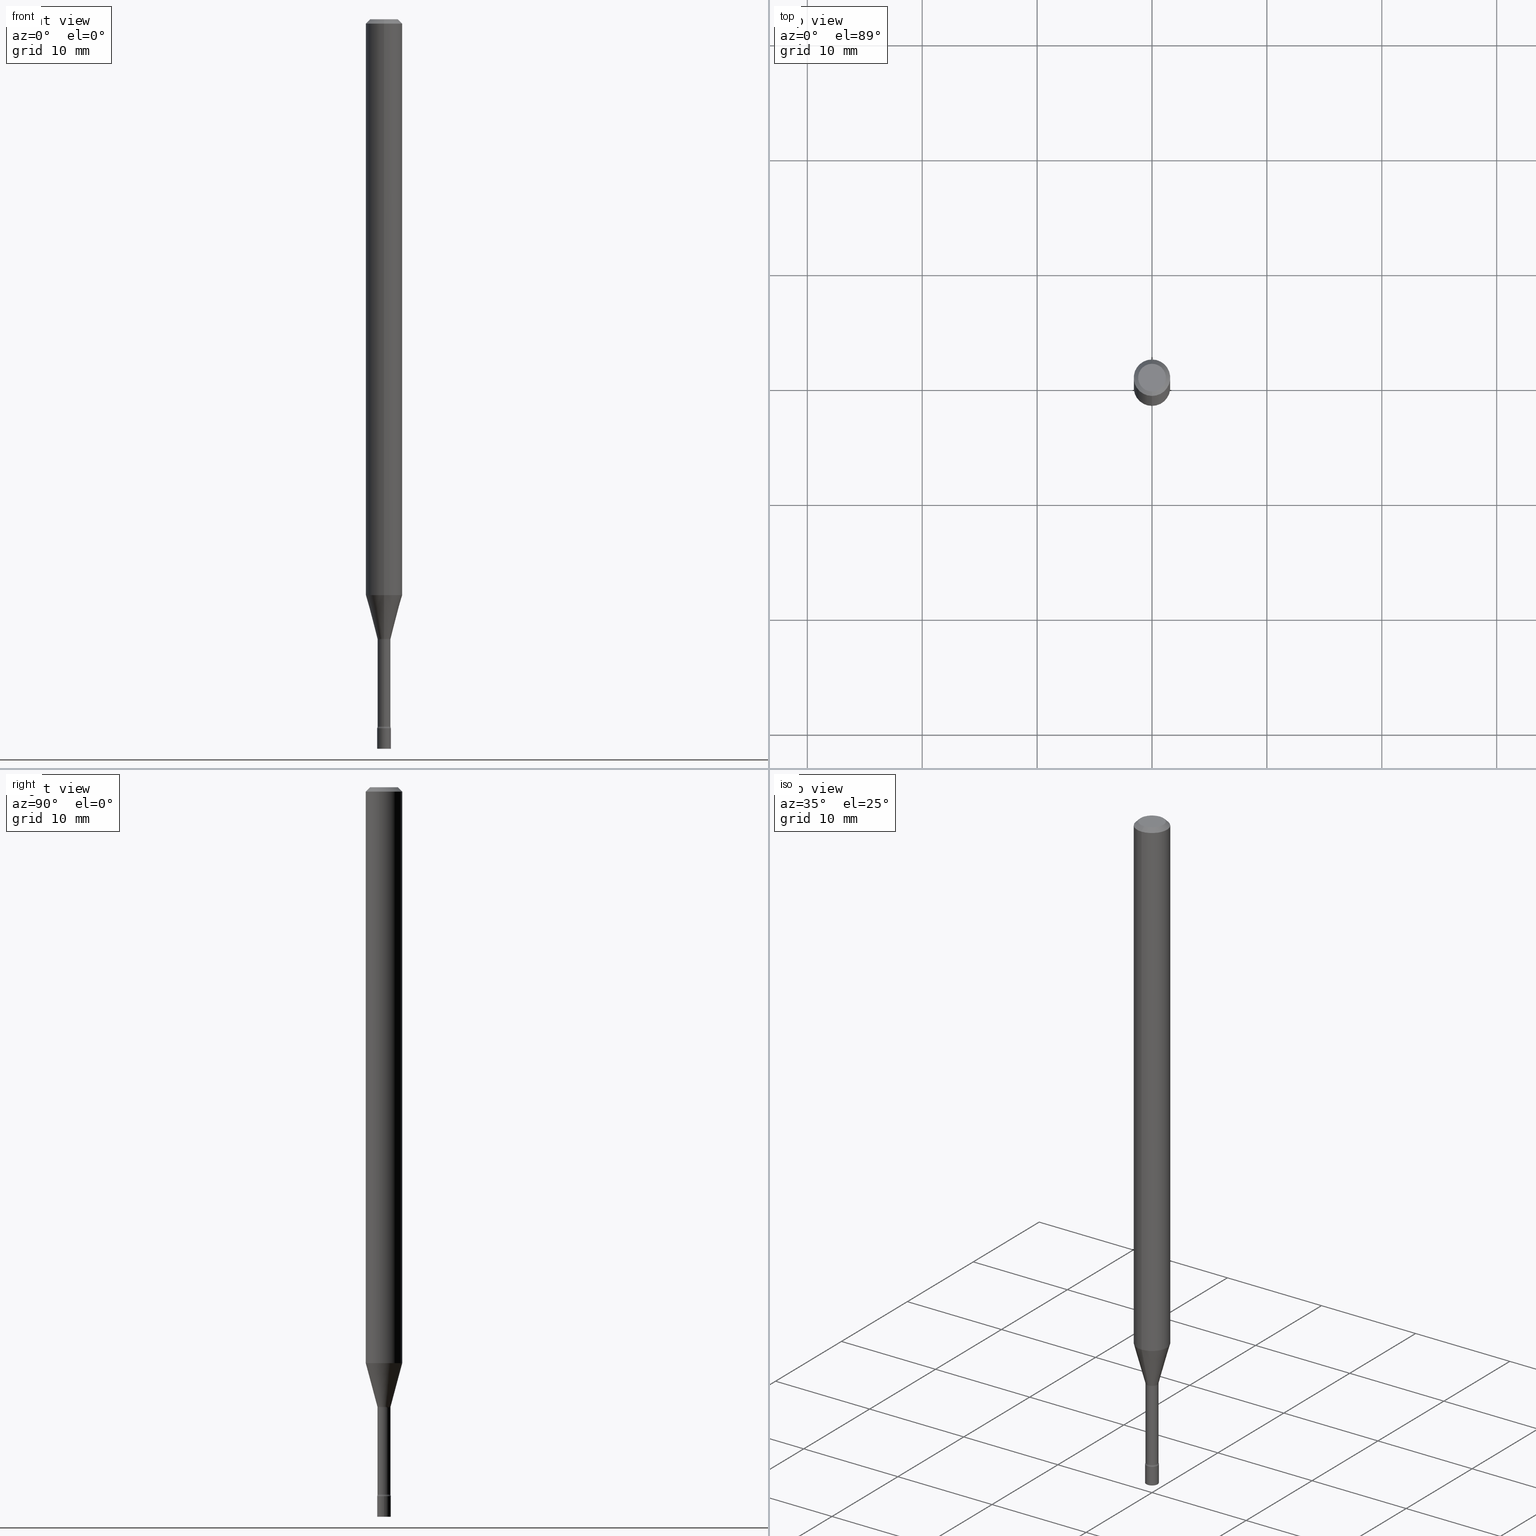
[diagram: canonical four-view strip — front | top / right | iso, engineering-drawing reading convention]
A machine part, canonical four-view strip (front | top / right | iso — engineering-drawing reading convention). The complete STEP part file that produces these views, byte-faithful:
ISO-10303-21;
HEADER;
FILE_DESCRIPTION (( 'STEP AP203' ),
    '1' );
FILE_NAME ('09664.STEP',
    '2024-03-09T00:33:19',
    ( '' ),
    ( '' ),
    'SwSTEP 2.0',
    'SolidWorks 2023',
    '' );
FILE_SCHEMA (( 'CONFIG_CONTROL_DESIGN' ));
ENDSEC;

DATA;
#1 =( LENGTH_UNIT ( ) NAMED_UNIT ( * ) SI_UNIT ( $, .METRE. ) );
#2 = DIRECTION ( 'NONE',  ( -2.445459864664737566E-29, 3.491494143609276784E-15, 1.000000000000000000 ) ) ;
#3 = DIRECTION ( 'NONE',  ( -2.445459864664737566E-29, 3.491494143609276784E-15, 1.000000000000000000 ) ) ;
#4 = AXIS2_PLACEMENT_3D ( 'NONE', #263, #390, #429 ) ;
#5 = CARTESIAN_POINT ( 'NONE',  ( 3.840629472727447874E-16, 0.04749999999999999362, -1.947592745229184119E-16 ) ) ;
#6 = CALENDAR_DATE ( 2024, 8, 3 ) ;
#7 = CARTESIAN_POINT ( 'NONE',  ( 1.570299446030415141E-16, 0.02209999999999257697, -2.125974787463811300 ) ) ;
#8 = ADVANCED_FACE ( 'NONE', ( #366 ), #496, .T. ) ;
#9 = VECTOR ( 'NONE', #475, 39.37007874015748143 ) ;
#10 = AXIS2_PLACEMENT_3D ( 'NONE', #313, #315, #341 ) ;
#11 = ORIENTED_EDGE ( 'NONE', *, *, #189, .F. ) ;
#12 = CARTESIAN_POINT ( 'NONE',  ( -3.773273898774340269E-16, -0.04749999999999999362, 1.369326691199628481E-16 ) ) ;
#13 = DIRECTION ( 'NONE',  ( -6.982962677686265922E-15, -1.000000000000000000, 0.000000000000000000 ) ) ;
#14 = ORIENTED_EDGE ( 'NONE', *, *, #310, .F. ) ;
#15 = AXIS2_PLACEMENT_3D ( 'NONE', #385, #380, #423 ) ;
#16 = ORIENTED_EDGE ( 'NONE', *, *, #481, .T. ) ;
#17 = VECTOR ( 'NONE', #352, 39.37007874015748143 ) ;
#18 = ADVANCED_FACE ( 'NONE', ( #173 ), #254, .T. ) ;
#19 = ORIENTED_EDGE ( 'NONE', *, *, #411, .F. ) ;
#20 = CARTESIAN_POINT ( 'NONE',  ( 5.924569496155794395E-29, -8.458715066898005273E-15, -2.422672283192177645 ) ) ;
#21 = CC_DESIGN_DATE_AND_TIME_ASSIGNMENT ( #500, #71, ( #461 ) ) ;
#22 = ORIENTED_EDGE ( 'NONE', *, *, #481, .F. ) ;
#23 = ORIENTED_EDGE ( 'NONE', *, *, #365, .F. ) ;
#24 = DIRECTION ( 'NONE',  ( -6.982962677686265133E-15, -1.000000000000000000, 0.000000000000000000 ) ) ;
#25 = CARTESIAN_POINT ( 'NONE',  ( 3.668189796997113601E-31, -5.237241215413926147E-17, -0.01500000000000003067 ) ) ;
#26 = ORIENTED_EDGE ( 'NONE', *, *, #206, .T. ) ;
#27 = DIRECTION ( 'NONE',  ( -6.982962677686265922E-15, -1.000000000000000000, 3.491494143609276390E-15 ) ) ;
#28 = CALENDAR_DATE ( 2024, 8, 3 ) ;
#29 = ADVANCED_FACE ( 'NONE', ( #32 ), #215, .F. ) ;
#30 = CARTESIAN_POINT ( 'NONE',  ( 2.636113549670491425E-16, 0.03709999999999258335, -2.125974787463811300 ) ) ;
#31 = DIRECTION ( 'NONE',  ( -6.982962677686265922E-15, -1.000000000000000000, 0.000000000000000000 ) ) ;
#32 = FACE_OUTER_BOUND ( 'NONE', #248, .T. ) ;
#33 = AXIS2_PLACEMENT_3D ( 'NONE', #269, #485, #31 ) ;
#34 = ADVANCED_FACE ( 'NONE', ( #456 ), #91, .F. ) ;
#35 = VERTEX_POINT ( 'NONE', #340 ) ;
#36 = LINE ( 'NONE', #431, #9 ) ;
#37 = DIRECTION ( 'NONE',  ( -2.445459864664737566E-29, 3.491494143609276784E-15, 1.000000000000000000 ) ) ;
#38 = VERTEX_POINT ( 'NONE', #107 ) ;
#39 = ADVANCED_FACE ( 'NONE', ( #308 ), #271, .T. ) ;
#40 = CARTESIAN_POINT ( 'NONE',  ( 6.113672015462842613E-29, -8.728703347107864943E-15, -2.500000000000000000 ) ) ;
#41 = APPROVAL_ROLE ( '' ) ;
#42 = CONICAL_SURFACE ( 'NONE', #121, 0.06250000000000000000, 0.7853981633974483900 ) ;
#43 = LOCAL_TIME ( 19, 33, 19.00000000000000000, #358 ) ;
#44 = DIRECTION ( 'NONE',  ( -6.982962677686265922E-15, -1.000000000000000000, 0.000000000000000000 ) ) ;
#45 = ADVANCED_FACE ( 'NONE', ( #213 ), #450, .F. ) ;
#46 = CARTESIAN_POINT ( 'NONE',  ( -4.364351673553434996E-16, -0.06250000000000691114, -1.973225147374217503 ) ) ;
#47 = FACE_OUTER_BOUND ( 'NONE', #325, .T. ) ;
#48 = ORIENTED_EDGE ( 'NONE', *, *, #365, .T. ) ;
#49 = ADVANCED_FACE ( 'NONE', ( #47 ), #124, .T. ) ;
#50 = CARTESIAN_POINT ( 'NONE',  ( 5.924569496155794395E-29, -8.458715066898005273E-15, -2.422672283192177645 ) ) ;
#51 = CLOSED_SHELL ( 'NONE', ( #266, #8, #45, #120, #353, #39, #514, #81, #204, #29, #34, #87, #296, #239 ) ) ;
#52 =( CONVERSION_BASED_UNIT ( 'INCH', #396 ) LENGTH_UNIT ( ) NAMED_UNIT ( #283 ) );
#53 = VECTOR ( 'NONE', #472, 39.37007874015748143 ) ;
#54 = AXIS2_PLACEMENT_3D ( 'NONE', #311, #233, #201 ) ;
#55 = AXIS2_PLACEMENT_3D ( 'NONE', #493, #363, #158 ) ;
#56 = APPROVAL ( #88, 'UNSPECIFIED' ) ;
#57 = CARTESIAN_POINT ( 'NONE',  ( -1.543234751768144959E-16, -0.02210000000000742273, -2.125974787463811300 ) ) ;
#58 = ORIENTED_EDGE ( 'NONE', *, *, #507, .F. ) ;
#59 = VERTEX_POINT ( 'NONE', #46 ) ;
#60 = EDGE_CURVE ( 'NONE', #148, #265, #292, .T. ) ;
#61 = DIRECTION ( 'NONE',  ( -2.445459864664737566E-29, 3.491494143609276784E-15, 1.000000000000000000 ) ) ;
#62 = AXIS2_PLACEMENT_3D ( 'NONE', #422, #69, #222 ) ;
#63 = ORIENTED_EDGE ( 'NONE', *, *, #232, .T. ) ;
#64 = CARTESIAN_POINT ( 'NONE',  ( 5.924547833782153992E-29, -8.458746088650004538E-15, -2.422672283192177645 ) ) ;
#65 = DIRECTION ( 'NONE',  ( -6.982962677686265922E-15, -1.000000000000000000, 0.000000000000000000 ) ) ;
#66 = ORIENTED_EDGE ( 'NONE', *, *, #282, .T. ) ;
#67 = ORIENTED_EDGE ( 'NONE', *, *, #328, .F. ) ;
#68 = DIRECTION ( 'NONE',  ( -2.445459864664737566E-29, 3.491494143609276390E-15, 1.000000000000000000 ) ) ;
#69 = DIRECTION ( 'NONE',  ( -1.000000000000000000, 6.982962677686265922E-15, -4.883557194083112340E-29 ) ) ;
#70 = ORIENTED_EDGE ( 'NONE', *, *, #483, .T. ) ;
#71 = DATE_TIME_ROLE ( 'classification_date' ) ;
#72 = VERTEX_POINT ( 'NONE', #5 ) ;
#73 = CARTESIAN_POINT ( 'NONE',  ( 0.000000000000000000, 0.000000000000000000, 0.000000000000000000 ) ) ;
#74 = CARTESIAN_POINT ( 'NONE',  ( -0.02350000000000000352, -8.437778216675308581E-15, -2.429000000000000270 ) ) ;
#75 = ORIENTED_EDGE ( 'NONE', *, *, #483, .F. ) ;
#76 = LINE ( 'NONE', #149, #53 ) ;
#77 = DIRECTION ( 'NONE',  ( -6.982962677686266711E-15, -1.000000000000000000, 0.000000000000000000 ) ) ;
#78 = CIRCLE ( 'NONE', #443, 0.06250000000000000000 ) ;
#79 = MANIFOLD_SOLID_BREP ( 'Body-Move/Copy2[1]', #132 ) ;
#80 = APPROVAL_DATE_TIME ( #400, #406 ) ;
#81 = ADVANCED_FACE ( 'NONE', ( #320 ), #130, .T. ) ;
#82 = APPROVAL ( #351, 'UNSPECIFIED' ) ;
#83 = DIRECTION ( 'NONE',  ( -2.445459864664737566E-29, 3.491494143609276784E-15, 1.000000000000000000 ) ) ;
#84 = CIRCLE ( 'NONE', #133, 0.04749999999999999362 ) ;
#85 = CARTESIAN_POINT ( 'NONE',  ( 0.000000000000000000, 0.000000000000000000, 0.000000000000000000 ) ) ;
#86 = LOCAL_TIME ( 19, 33, 19.00000000000000000, #165 ) ;
#87 = ADVANCED_FACE ( 'NONE', ( #116 ), #234, .F. ) ;
#88 = APPROVAL_STATUS ( 'not_yet_approved' ) ;
#89 = CARTESIAN_POINT ( 'NONE',  ( 4.440892098501111311E-16, 0.06249999999999995143, -0.01500000000000024751 ) ) ;
#90 = ORIENTED_EDGE ( 'NONE', *, *, #357, .F. ) ;
#91 = PLANE ( 'NONE',  #473 ) ;
#92 = DIRECTION ( 'NONE',  ( -2.445459864664737566E-29, 3.491494143609276390E-15, 1.000000000000000000 ) ) ;
#93 = LINE ( 'NONE', #256, #312 ) ;
#94 = EDGE_LOOP ( 'NONE', ( #58, #346, #458, #309 ) ) ;
#95 = ORIENTED_EDGE ( 'NONE', *, *, #197, .T. ) ;
#96 = EDGE_CURVE ( 'NONE', #347, #35, #426, .T. ) ;
#97 = AXIS2_PLACEMENT_3D ( 'NONE', #73, #386, #304 ) ;
#98 = DIRECTION ( 'NONE',  ( -6.982962677686266711E-15, -1.000000000000000000, 3.491494143609277179E-15 ) ) ;
#99 = LINE ( 'NONE', #421, #203 ) ;
#100 = DIRECTION ( 'NONE',  ( 1.839019923739599526E-15, 0.2588190451025248473, 0.9659258262890673130 ) ) ;
#101 = ORIENTED_EDGE ( 'NONE', *, *, #129, .T. ) ;
#102 = DIRECTION ( 'NONE',  ( -6.982962677686265922E-15, -1.000000000000000000, 3.491494143609276784E-15 ) ) ;
#103 = DIRECTION ( 'NONE',  ( -2.445459864664737566E-29, 3.491494143609276784E-15, 1.000000000000000000 ) ) ;
#104 = PERSON_AND_ORGANIZATION ( #520, #164 ) ;
#105 = CARTESIAN_POINT ( 'NONE',  ( -4.364351673553912750E-16, -0.06250000000000005551, -0.01499999999999981209 ) ) ;
#106 = EDGE_LOOP ( 'NONE', ( #14, #48, #468, #22 ) ) ;
#107 = CARTESIAN_POINT ( 'NONE',  ( 0.02350000000000000352, -8.892802970033491011E-15, -2.500000000000000000 ) ) ;
#108 = ORIENTED_EDGE ( 'NONE', *, *, #150, .T. ) ;
#109 = DIRECTION ( 'NONE',  ( -6.982962677686265922E-15, -1.000000000000000000, 3.491494143609276784E-15 ) ) ;
#110 = AXIS2_PLACEMENT_3D ( 'NONE', #85, #245, #405 ) ;
#111 = CARTESIAN_POINT ( 'NONE',  ( 3.668189796997113601E-31, -5.237241215413926147E-17, -0.01500000000000003067 ) ) ;
#112 = CARTESIAN_POINT ( 'NONE',  ( -2.590679153421085311E-16, -0.03710000000000742565, -2.125974787463811300 ) ) ;
#113 = ORIENTED_EDGE ( 'NONE', *, *, #96, .F. ) ;
#114 = CC_DESIGN_PERSON_AND_ORGANIZATION_ASSIGNMENT ( #167, #445, ( #276 ) ) ;
#115 = DIRECTION ( 'NONE',  ( 1.000000000000000000, -7.105427357601001070E-15, 4.926315665355240651E-29 ) ) ;
#116 = FACE_OUTER_BOUND ( 'NONE', #495, .T. ) ;
#117 = DATE_AND_TIME ( #518, #145 ) ;
#118 = APPROVAL_ROLE ( '' ) ;
#119 = APPROVAL_DATE_TIME ( #117, #82 ) ;
#120 = ADVANCED_FACE ( 'NONE', ( #376 ), #369, .T. ) ;
#121 = AXIS2_PLACEMENT_3D ( 'NONE', #111, #154, #377 ) ;
#122 = CIRCLE ( 'NONE', #259, 0.02210000000000000159 ) ;
#123 = COORDINATED_UNIVERSAL_TIME_OFFSET ( 5, 0, .BEHIND. ) ;
#124 = CYLINDRICAL_SURFACE ( 'NONE', #54, 0.02350000000000000352 ) ;
#125 = DIRECTION ( 'NONE',  ( -6.982962677686265922E-15, -1.000000000000000000, 0.000000000000000000 ) ) ;
#126 = CARTESIAN_POINT ( 'NONE',  ( 6.113672015462842613E-29, -8.728703347107864943E-15, -2.500000000000000000 ) ) ;
#127 = PERSON_AND_ORGANIZATION ( #520, #164 ) ;
#128 = DIRECTION ( 'NONE',  ( -2.445468806185136877E-29, 3.491481338843145188E-15, 1.000000000000000000 ) ) ;
#129 = EDGE_CURVE ( 'NONE', #72, #284, #99, .T. ) ;
#130 = CYLINDRICAL_SURFACE ( 'NONE', #110, 0.06250000000000000000 ) ;
#131 = ORIENTED_EDGE ( 'NONE', *, *, #428, .F. ) ;
#132 = CLOSED_SHELL ( 'NONE', ( #49, #136, #18, #321 ) ) ;
#133 = AXIS2_PLACEMENT_3D ( 'NONE', #155, #2, #98 ) ;
#134 = DATE_TIME_ROLE ( 'creation_date' ) ;
#135 = CARTESIAN_POINT ( 'NONE',  ( 5.940043730223697314E-29, -8.480808172050001970E-15, -2.429000000000000270 ) ) ;
#136 = ADVANCED_FACE ( 'NONE', ( #146 ), #270, .T. ) ;
#137 = AXIS2_PLACEMENT_3D ( 'NONE', #230, #350, #435 ) ;
#138 = ORIENTED_EDGE ( 'NONE', *, *, #428, .T. ) ;
#139 = DIRECTION ( 'NONE',  ( 2.445459864664737566E-29, -3.491494143609276390E-15, -1.000000000000000000 ) ) ;
#140 = EDGE_LOOP ( 'NONE', ( #188, #379 ) ) ;
#141 = FACE_OUTER_BOUND ( 'NONE', #378, .T. ) ;
#142 = ORIENTED_EDGE ( 'NONE', *, *, #169, .F. ) ;
#143 = DIRECTION ( 'NONE',  ( 1.000000000000000000, -7.105427357601001070E-15, 4.926315665355240651E-29 ) ) ;
#144 = AXIS2_PLACEMENT_3D ( 'NONE', #302, #103, #24 ) ;
#145 = LOCAL_TIME ( 19, 33, 19.00000000000000000, #288 ) ;
#146 = FACE_OUTER_BOUND ( 'NONE', #140, .T. ) ;
#147 = CARTESIAN_POINT ( 'NONE',  ( 5.199005025478825599E-29, -7.422801297280918340E-15, -2.125974787463811300 ) ) ;
#148 = VERTEX_POINT ( 'NONE', #74 ) ;
#149 = CARTESIAN_POINT ( 'NONE',  ( -4.364351673553916201E-16, -0.06250000000000000000, 2.182183839755797990E-16 ) ) ;
#150 = EDGE_CURVE ( 'NONE', #35, #220, #392, .T. ) ;
#151 = CIRCLE ( 'NONE', #342, 0.02350000000000000352 ) ;
#152 =( GEOMETRIC_REPRESENTATION_CONTEXT ( 3 ) GLOBAL_UNCERTAINTY_ASSIGNED_CONTEXT ( ( #391 ) ) GLOBAL_UNIT_ASSIGNED_CONTEXT ( ( #52, #319, #160 ) ) REPRESENTATION_CONTEXT ( 'NONE', 'WORKASPACE' ) );
#153 = PERSON_AND_ORGANIZATION ( #520, #164 ) ;
#154 = DIRECTION ( 'NONE',  ( 2.445459864664737566E-29, -3.491494143609276784E-15, -1.000000000000000000 ) ) ;
#155 = CARTESIAN_POINT ( 'NONE',  ( 7.070632131136643894E-46, -1.009506270546119456E-31, -2.891330270147777573E-17 ) ) ;
#156 = VECTOR ( 'NONE', #128, 39.37007874015748143 ) ;
#157 = DIRECTION ( 'NONE',  ( 0.000000000000000000, 0.000000000000000000, 1.000000000000000000 ) ) ;
#158 = DIRECTION ( 'NONE',  ( -6.982962677686265922E-15, -1.000000000000000000, 3.491494143609276784E-15 ) ) ;
#159 = LINE ( 'NONE', #322, #183 ) ;
#160 =( NAMED_UNIT ( * ) SI_UNIT ( $, .STERADIAN. ) SOLID_ANGLE_UNIT ( ) );
#161 = DIRECTION ( 'NONE',  ( -2.445459864664737566E-29, 3.491494143609276784E-15, 1.000000000000000000 ) ) ;
#162 = AXIS2_PLACEMENT_3D ( 'NONE', #30, #115, #228 ) ;
#163 = AXIS2_PLACEMENT_3D ( 'NONE', #368, #139, #337 ) ;
#164 = ORGANIZATION ( 'UNSPECIFIED', 'UNSPECIFIED', '' ) ;
#165 = COORDINATED_UNIVERSAL_TIME_OFFSET ( 5, 0, .BEHIND. ) ;
#166 = EDGE_CURVE ( 'NONE', #294, #38, #151, .T. ) ;
#167 = PERSON_AND_ORGANIZATION ( #520, #164 ) ;
#168 = CARTESIAN_POINT ( 'NONE',  ( -1.578925554262611837E-16, -0.02261111260567139764, -2.122092501787273378 ) ) ;
#169 = EDGE_CURVE ( 'NONE', #35, #260, #464, .T. ) ;
#170 = EDGE_LOOP ( 'NONE', ( #492, #90 ) ) ;
#171 = CIRCLE ( 'NONE', #62, 0.01499999999999999424 ) ;
#172 = CIRCLE ( 'NONE', #399, 0.01500000000000002373 ) ;
#173 = FACE_OUTER_BOUND ( 'NONE', #502, .T. ) ;
#174 = CARTESIAN_POINT ( 'NONE',  ( -1.578925554262611837E-16, -0.02261111260567139764, -2.122092501787273378 ) ) ;
#175 = ORIENTED_EDGE ( 'NONE', *, *, #166, .F. ) ;
#176 = ORIENTED_EDGE ( 'NONE', *, *, #469, .F. ) ;
#177 = CARTESIAN_POINT ( 'NONE',  ( 1.669775429036828812E-16, 0.02349999999999151726, -2.429000000000000270 ) ) ;
#178 = DIRECTION ( 'NONE',  ( -2.445459864664737566E-29, 3.491494143609276784E-15, 1.000000000000000000 ) ) ;
#179 = PERSON_AND_ORGANIZATION_ROLE ( 'design_supplier' ) ;
#180 = DIRECTION ( 'NONE',  ( 2.445459864664737566E-29, -3.491494143609276784E-15, -1.000000000000000000 ) ) ;
#181 = EDGE_LOOP ( 'NONE', ( #264, #252, #184, #75 ) ) ;
#182 = ORIENTED_EDGE ( 'NONE', *, *, #206, .F. ) ;
#183 = VECTOR ( 'NONE', #92, 39.37007874015748143 ) ;
#184 = ORIENTED_EDGE ( 'NONE', *, *, #434, .T. ) ;
#185 = CARTESIAN_POINT ( 'NONE',  ( 0.000000000000000000, 0.000000000000000000, 0.000000000000000000 ) ) ;
#186 = CYLINDRICAL_SURFACE ( 'NONE', #97, 0.02210000000000003628 ) ;
#187 = SECURITY_CLASSIFICATION_LEVEL ( 'unclassified' ) ;
#188 = ORIENTED_EDGE ( 'NONE', *, *, #328, .T. ) ;
#189 = EDGE_CURVE ( 'NONE', #294, #148, #36, .T. ) ;
#190 = CARTESIAN_POINT ( 'NONE',  ( 4.440892098501106381E-16, 0.06249999999999308192, -1.973225147374218169 ) ) ;
#191 = DIRECTION ( 'NONE',  ( 1.000000000000000000, -6.982962677686228056E-15, 0.000000000000000000 ) ) ;
#192 = DIRECTION ( 'NONE',  ( -2.445459864664737566E-29, 3.491494143609276390E-15, 1.000000000000000000 ) ) ;
#193 = CARTESIAN_POINT ( 'NONE',  ( 5.189492042226759064E-29, -7.409273542187424464E-15, -2.122092501787273378 ) ) ;
#194 = TOROIDAL_SURFACE ( 'NONE', #360, 0.03710000000000000103, 0.01500000000000002373 ) ;
#195 = CALENDAR_DATE ( 2024, 8, 3 ) ;
#196 = APPROVAL_PERSON_ORGANIZATION ( #211, #56, #293 ) ;
#197 = EDGE_CURVE ( 'NONE', #35, #347, #278, .T. ) ;
#198 = LINE ( 'NONE', #516, #17 ) ;
#199 = CARTESIAN_POINT ( 'NONE',  ( 3.668189796997113601E-31, -5.237241215413926147E-17, -0.01500000000000003067 ) ) ;
#200 = DIRECTION ( 'NONE',  ( -2.445459864664737566E-29, 3.491494143609276784E-15, 1.000000000000000000 ) ) ;
#201 = DIRECTION ( 'NONE',  ( 1.000000000000000000, -6.982962677686265922E-15, 4.876176775795935793E-29 ) ) ;
#202 = LINE ( 'NONE', #433, #156 ) ;
#203 = VECTOR ( 'NONE', #231, 39.37007874015748143 ) ;
#204 = ADVANCED_FACE ( 'NONE', ( #221 ), #42, .T. ) ;
#205 = DIRECTION ( 'NONE',  ( -2.445459864664737566E-29, 3.491494143609276784E-15, 1.000000000000000000 ) ) ;
#206 = EDGE_CURVE ( 'NONE', #489, #261, #323, .T. ) ;
#207 = AXIS2_PLACEMENT_3D ( 'NONE', #454, #420, #381 ) ;
#208 = EDGE_CURVE ( 'NONE', #375, #401, #171, .T. ) ;
#209 = DIRECTION ( 'NONE',  ( -6.982962677686265922E-15, -1.000000000000000000, 4.370956789862821150E-15 ) ) ;
#210 = PERSON_AND_ORGANIZATION ( #520, #164 ) ;
#211 = PERSON_AND_ORGANIZATION ( #520, #164 ) ;
#212 = DIRECTION ( 'NONE',  ( -6.982962677686265133E-15, -1.000000000000000000, 0.000000000000000000 ) ) ;
#213 = FACE_OUTER_BOUND ( 'NONE', #508, .T. ) ;
#214 = VERTEX_POINT ( 'NONE', #105 ) ;
#215 = PLANE ( 'NONE',  #163 ) ;
#216 = EDGE_CURVE ( 'NONE', #38, #294, #408, .T. ) ;
#217 = CIRCLE ( 'NONE', #415, 0.06250000000000000000 ) ;
#218 = ORIENTED_EDGE ( 'NONE', *, *, #150, .F. ) ;
#219 = AXIS2_PLACEMENT_3D ( 'NONE', #480, #205, #125 ) ;
#220 = VERTEX_POINT ( 'NONE', #7 ) ;
#221 = FACE_OUTER_BOUND ( 'NONE', #519, .T. ) ;
#222 = DIRECTION ( 'NONE',  ( -6.982962677686265133E-15, -1.000000000000000000, 0.000000000000000000 ) ) ;
#223 = ORIENTED_EDGE ( 'NONE', *, *, #318, .T. ) ;
#224 = AXIS2_PLACEMENT_3D ( 'NONE', #20, #498, #295 ) ;
#225 = APPROVAL_PERSON_ORGANIZATION ( #397, #406, #41 ) ;
#226 = PERSON_AND_ORGANIZATION_ROLE ( 'creator' ) ;
#227 = PERSON_AND_ORGANIZATION ( #520, #164 ) ;
#228 = DIRECTION ( 'NONE',  ( 7.105427357601001859E-15, 1.000000000000000000, 0.000000000000000000 ) ) ;
#229 = LINE ( 'NONE', #389, #474 ) ;
#230 = CARTESIAN_POINT ( 'NONE',  ( 5.940043730223697314E-29, -8.480808172050001970E-15, -2.429000000000000270 ) ) ;
#231 = DIRECTION ( 'NONE',  ( 4.937700262164548042E-15, 0.7071067811865451302, -0.7071067811865499042 ) ) ;
#232 = EDGE_CURVE ( 'NONE', #59, #260, #217, .T. ) ;
#233 = DIRECTION ( 'NONE',  ( -2.445468806185136597E-29, 3.491481338843145583E-15, 1.000000000000000000 ) ) ;
#234 = TOROIDAL_SURFACE ( 'NONE', #224, 0.03710000000000006348, 0.01499999999999999424 ) ;
#235 = CIRCLE ( 'NONE', #10, 0.06250000000000000000 ) ;
#236 = LOCAL_TIME ( 19, 33, 19.00000000000000000, #425 ) ;
#237 = EDGE_CURVE ( 'NONE', #489, #220, #159, .T. ) ;
#238 = APPLICATION_PROTOCOL_DEFINITION ( 'international standard', 'config_control_design', 1994, #488 ) ;
#239 = ADVANCED_FACE ( 'NONE', ( #503 ), #194, .F. ) ;
#240 = ORIENTED_EDGE ( 'NONE', *, *, #382, .T. ) ;
#241 = AXIS2_PLACEMENT_3D ( 'NONE', #50, #3, #479 ) ;
#242 = MANIFOLD_SOLID_BREP ( 'Body-Move/Copy2[2]', #51 ) ;
#243 = DESIGN_CONTEXT ( 'detailed design', #488, 'design' ) ;
#244 = DIRECTION ( 'NONE',  ( -6.982962677686265922E-15, -1.000000000000000000, 3.491494143609276784E-15 ) ) ;
#245 = DIRECTION ( 'NONE',  ( -2.445459864664737566E-29, 3.491494143609276784E-15, 1.000000000000000000 ) ) ;
#246 = MECHANICAL_CONTEXT ( 'NONE', #463, 'mechanical' ) ;
#247 = EDGE_CURVE ( 'NONE', #375, #489, #484, .T. ) ;
#248 = EDGE_LOOP ( 'NONE', ( #306, #274 ) ) ;
#249 = CIRCLE ( 'NONE', #33, 0.02350000000000000352 ) ;
#250 = CC_DESIGN_SECURITY_CLASSIFICATION ( #461, ( #362 ) ) ;
#251 = CARTESIAN_POINT ( 'NONE',  ( 4.825442901850811543E-29, -6.889504046079633942E-15, -1.973225147374217947 ) ) ;
#252 = ORIENTED_EDGE ( 'NONE', *, *, #469, .T. ) ;
#253 = PRODUCT_DEFINITION_SHAPE ( 'NONE', 'NONE',  #276 ) ;
#254 = CYLINDRICAL_SURFACE ( 'NONE', #15, 0.02350000000000000352 ) ;
#255 = DIRECTION ( 'NONE',  ( -2.445459864664737566E-29, 3.491494143609276784E-15, 1.000000000000000000 ) ) ;
#256 = CARTESIAN_POINT ( 'NONE',  ( -4.287811248607203282E-16, -0.06250000000000005551, -0.01499999999999981209 ) ) ;
#257 = AXIS2_PLACEMENT_3D ( 'NONE', #193, #510, #467 ) ;
#258 = ORIENTED_EDGE ( 'NONE', *, *, #247, .T. ) ;
#259 = AXIS2_PLACEMENT_3D ( 'NONE', #394, #178, #44 ) ;
#260 = VERTEX_POINT ( 'NONE', #190 ) ;
#261 = VERTEX_POINT ( 'NONE', #177 ) ;
#262 = CARTESIAN_POINT ( 'NONE',  ( 1.620037437533623579E-16, 0.02209999999999160900, -2.422672283192177645 ) ) ;
#263 = CARTESIAN_POINT ( 'NONE',  ( 5.940043730223697314E-29, -8.480808172050001970E-15, -2.429000000000000270 ) ) ;
#264 = ORIENTED_EDGE ( 'NONE', *, *, #237, .F. ) ;
#265 = VERTEX_POINT ( 'NONE', #499 ) ;
#266 = ADVANCED_FACE ( 'NONE', ( #459 ), #436, .F. ) ;
#267 = ORIENTED_EDGE ( 'NONE', *, *, #208, .F. ) ;
#268 = CARTESIAN_POINT ( 'NONE',  ( 5.189492042226759064E-29, -7.409273542187424464E-15, -2.122092501787273378 ) ) ;
#269 = CARTESIAN_POINT ( 'NONE',  ( 5.940022011270647175E-29, -8.480839274826933485E-15, -2.429000000000000270 ) ) ;
#270 = PLANE ( 'NONE',  #4 ) ;
#271 = CONICAL_SURFACE ( 'NONE', #329, 0.02261111260566398690, 0.2617993877991501295 ) ;
#272 = CIRCLE ( 'NONE', #279, 0.02350000000000000352 ) ;
#273 = EDGE_LOOP ( 'NONE', ( #291, #108, #70, #131 ) ) ;
#274 = ORIENTED_EDGE ( 'NONE', *, *, #507, .T. ) ;
#275 = CARTESIAN_POINT ( 'NONE',  ( 1.606616180941336340E-16, 0.02261111260565657616, -2.122092501787273378 ) ) ;
#276 = PRODUCT_DEFINITION ( 'UNKNOWN', '', #362, #243 ) ;
#277 = AXIS2_PLACEMENT_3D ( 'NONE', #185, #61, #102 ) ;
#278 = CIRCLE ( 'NONE', #257, 0.02261111260566398690 ) ;
#279 = AXIS2_PLACEMENT_3D ( 'NONE', #135, #287, #410 ) ;
#280 = CARTESIAN_POINT ( 'NONE',  ( 0.000000000000000000, 0.000000000000000000, 0.000000000000000000 ) ) ;
#281 = ORIENTED_EDGE ( 'NONE', *, *, #166, .T. ) ;
#282 = EDGE_CURVE ( 'NONE', #401, #261, #249, .T. ) ;
#283 = DIMENSIONAL_EXPONENTS ( 1.000000000000000000, 0.000000000000000000, 0.000000000000000000, 0.000000000000000000, 0.000000000000000000, 0.000000000000000000, 0.000000000000000000 ) ;
#284 = VERTEX_POINT ( 'NONE', #89 ) ;
#285 = DIRECTION ( 'NONE',  ( -6.982962677686265922E-15, -1.000000000000000000, 4.370956789862821150E-15 ) ) ;
#286 = CARTESIAN_POINT ( 'NONE',  ( 5.199005025478825599E-29, -7.422801297280918340E-15, -2.125974787463811300 ) ) ;
#287 = DIRECTION ( 'NONE',  ( -2.445468806185136597E-29, 3.491481338843145583E-15, 1.000000000000000000 ) ) ;
#288 = COORDINATED_UNIVERSAL_TIME_OFFSET ( 5, 0, .BEHIND. ) ;
#289 = CC_DESIGN_PERSON_AND_ORGANIZATION_ASSIGNMENT ( #153, #179, ( #362 ) ) ;
#290 = CARTESIAN_POINT ( 'NONE',  ( 5.940022011270647175E-29, -8.480839274826933485E-15, -2.429000000000000270 ) ) ;
#291 = ORIENTED_EDGE ( 'NONE', *, *, #197, .F. ) ;
#292 = CIRCLE ( 'NONE', #137, 0.02350000000000000352 ) ;
#293 = APPROVAL_ROLE ( '' ) ;
#294 = VERTEX_POINT ( 'NONE', #373 ) ;
#295 = DIRECTION ( 'NONE',  ( -6.982962677686265922E-15, -1.000000000000000000, 3.491494143609276784E-15 ) ) ;
#296 = ADVANCED_FACE ( 'NONE', ( #430 ), #186, .T. ) ;
#297 = DATE_AND_TIME ( #6, #43 ) ;
#298 = PLANE ( 'NONE',  #207 ) ;
#299 = AXIS2_PLACEMENT_3D ( 'NONE', #339, #143, #383 ) ;
#300 = DIRECTION ( 'NONE',  ( 6.982962677686265922E-15, 1.000000000000000000, -3.483106191921935554E-15 ) ) ;
#301 = ORIENTED_EDGE ( 'NONE', *, *, #216, .T. ) ;
#303 = EDGE_CURVE ( 'NONE', #59, #214, #76, .T. ) ;
#302 = CARTESIAN_POINT ( 'NONE',  ( 5.924547833782153992E-29, -8.458746088650004538E-15, -2.422672283192177645 ) ) ;
#304 = DIRECTION ( 'NONE',  ( -6.982962677686265922E-15, -1.000000000000000000, 3.491494143609276784E-15 ) ) ;
#305 = DIRECTION ( 'NONE',  ( -2.445468806185136597E-29, 3.491481338843145583E-15, 1.000000000000000000 ) ) ;
#306 = ORIENTED_EDGE ( 'NONE', *, *, #411, .T. ) ;
#307 = ORIENTED_EDGE ( 'NONE', *, *, #189, .T. ) ;
#308 = FACE_OUTER_BOUND ( 'NONE', #418, .T. ) ;
#309 = ORIENTED_EDGE ( 'NONE', *, *, #129, .F. ) ;
#310 = EDGE_CURVE ( 'NONE', #260, #284, #229, .T. ) ;
#311 = CARTESIAN_POINT ( 'NONE',  ( 0.000000000000000000, 0.000000000000000000, 0.000000000000000000 ) ) ;
#312 = VECTOR ( 'NONE', #448, 39.37007874015748143 ) ;
#313 = CARTESIAN_POINT ( 'NONE',  ( 3.668189796997113601E-31, -5.237241215413926147E-17, -0.01500000000000003067 ) ) ;
#314 = CARTESIAN_POINT ( 'NONE',  ( -1.640996229255678655E-16, -0.02350000000000847938, -2.429000000000000270 ) ) ;
#315 = DIRECTION ( 'NONE',  ( -2.445459864664737566E-29, 3.491494143609276784E-15, 1.000000000000000000 ) ) ;
#316 = AXIS2_PLACEMENT_3D ( 'NONE', #25, #180, #300 ) ;
#317 = AXIS2_PLACEMENT_3D ( 'NONE', #290, #404, #446 ) ;
#318 = EDGE_CURVE ( 'NONE', #347, #59, #512, .T. ) ;
#319 =( NAMED_UNIT ( * ) PLANE_ANGLE_UNIT ( ) SI_UNIT ( $, .RADIAN. ) );
#320 = FACE_OUTER_BOUND ( 'NONE', #106, .T. ) ;
#321 = ADVANCED_FACE ( 'NONE', ( #141 ), #298, .T. ) ;
#322 = CARTESIAN_POINT ( 'NONE',  ( 1.570299446029823742E-16, 0.02210000000000003628, -7.716202057376514729E-17 ) ) ;
#323 = CIRCLE ( 'NONE', #299, 0.01499999999999999424 ) ;
#324 = AXIS2_PLACEMENT_3D ( 'NONE', #64, #412, #212 ) ;
#325 = EDGE_LOOP ( 'NONE', ( #301, #307, #67, #470 ) ) ;
#326 = APPROVAL_DATE_TIME ( #297, #56 ) ;
#327 = FACE_OUTER_BOUND ( 'NONE', #511, .T. ) ;
#328 = EDGE_CURVE ( 'NONE', #265, #148, #272, .T. ) ;
#329 = AXIS2_PLACEMENT_3D ( 'NONE', #268, #471, #424 ) ;
#330 = CYLINDRICAL_SURFACE ( 'NONE', #55, 0.06250000000000000000 ) ;
#331 = CONICAL_SURFACE ( 'NONE', #219, 0.02261111260566398690, 0.2617993877991501295 ) ;
#332 = DATE_AND_TIME ( #453, #86 ) ;
#333 = EDGE_LOOP ( 'NONE', ( #142, #95, #223, #23 ) ) ;
#334 = ORIENTED_EDGE ( 'NONE', *, *, #310, .T. ) ;
#335 = ORIENTED_EDGE ( 'NONE', *, *, #96, .T. ) ;
#336 = ORIENTED_EDGE ( 'NONE', *, *, #216, .F. ) ;
#337 = DIRECTION ( 'NONE',  ( 6.982962677686265922E-15, 1.000000000000000000, -3.491494143609276390E-15 ) ) ;
#338 = PERSON_AND_ORGANIZATION_ROLE ( 'classification_officer' ) ;
#339 = CARTESIAN_POINT ( 'NONE',  ( 2.636113549670568339E-16, 0.03709999999999160497, -2.422672283192177645 ) ) ;
#340 = CARTESIAN_POINT ( 'NONE',  ( 3.023754139721223086E-16, 0.02261111260565657616, -2.122092501787273378 ) ) ;
#341 = DIRECTION ( 'NONE',  ( -6.982962677686265922E-15, -1.000000000000000000, 3.483106191921935554E-15 ) ) ;
#342 = AXIS2_PLACEMENT_3D ( 'NONE', #40, #305, #191 ) ;
#343 = CIRCLE ( 'NONE', #486, 0.06250000000000000000 ) ;
#344 = ORIENTED_EDGE ( 'NONE', *, *, #169, .T. ) ;
#345 = VERTEX_POINT ( 'NONE', #57 ) ;
#346 = ORIENTED_EDGE ( 'NONE', *, *, #442, .T. ) ;
#347 = VERTEX_POINT ( 'NONE', #168 ) ;
#348 = AXIS2_PLACEMENT_3D ( 'NONE', #126, #491, #367 ) ;
#349 = CIRCLE ( 'NONE', #324, 0.02210000000000007098 ) ;
#350 = DIRECTION ( 'NONE',  ( -2.445468806185136597E-29, 3.491481338843145583E-15, 1.000000000000000000 ) ) ;
#351 = APPROVAL_STATUS ( 'not_yet_approved' ) ;
#352 = DIRECTION ( 'NONE',  ( -2.445459864664737566E-29, 3.491494143609276390E-15, 1.000000000000000000 ) ) ;
#353 = ADVANCED_FACE ( 'NONE', ( #327 ), #330, .T. ) ;
#354 = DIRECTION ( 'NONE',  ( -6.982962677686265922E-15, -1.000000000000000000, 3.483106191921935554E-15 ) ) ;
#355 = FACE_OUTER_BOUND ( 'NONE', #333, .T. ) ;
#356 = CIRCLE ( 'NONE', #317, 0.02350000000000000352 ) ;
#357 = EDGE_CURVE ( 'NONE', #261, #401, #356, .T. ) ;
#358 = COORDINATED_UNIVERSAL_TIME_OFFSET ( 5, 0, .BEHIND. ) ;
#359 = ORIENTED_EDGE ( 'NONE', *, *, #447, .T. ) ;
#360 = AXIS2_PLACEMENT_3D ( 'NONE', #286, #255, #109 ) ;
#361 = CC_DESIGN_DATE_AND_TIME_ASSIGNMENT ( #332, #134, ( #276 ) ) ;
#362 = PRODUCT_DEFINITION_FORMATION_WITH_SPECIFIED_SOURCE ( 'ANY', '', #438, .NOT_KNOWN. ) ;
#363 = DIRECTION ( 'NONE',  ( -2.445459864664737566E-29, 3.491494143609276784E-15, 1.000000000000000000 ) ) ;
#364 = DIRECTION ( 'NONE',  ( -1.807323732225328562E-15, -0.2588190451025179639, 0.9659258262890689783 ) ) ;
#365 = EDGE_CURVE ( 'NONE', #260, #59, #343, .T. ) ;
#366 = FACE_OUTER_BOUND ( 'NONE', #451, .T. ) ;
#367 = DIRECTION ( 'NONE',  ( 1.000000000000000000, -6.982962677686228056E-15, 0.000000000000000000 ) ) ;
#368 = CARTESIAN_POINT ( 'NONE',  ( 3.316907271900976096E-16, 0.04749999999999999362, -1.803026231721795148E-16 ) ) ;
#369 = CONICAL_SURFACE ( 'NONE', #316, 0.06250000000000000000, 0.7853981633974483900 ) ;
#370 = VECTOR ( 'NONE', #364, 39.37007874015749564 ) ;
#371 = VERTEX_POINT ( 'NONE', #12 ) ;
#372 = ORIENTED_EDGE ( 'NONE', *, *, #60, .F. ) ;
#373 = CARTESIAN_POINT ( 'NONE',  ( -0.02350000000000000352, -8.437778216675308581E-15, -2.500000000000000000 ) ) ;
#374 = ORIENTED_EDGE ( 'NONE', *, *, #237, .T. ) ;
#375 = VERTEX_POINT ( 'NONE', #476 ) ;
#376 = FACE_OUTER_BOUND ( 'NONE', #94, .T. ) ;
#377 = DIRECTION ( 'NONE',  ( 6.982962677686265922E-15, 1.000000000000000000, -3.483106191921935554E-15 ) ) ;
#378 = EDGE_LOOP ( 'NONE', ( #336, #175 ) ) ;
#379 = ORIENTED_EDGE ( 'NONE', *, *, #60, .T. ) ;
#380 = DIRECTION ( 'NONE',  ( -2.445468806185136597E-29, 3.491481338843145583E-15, 1.000000000000000000 ) ) ;
#381 = DIRECTION ( 'NONE',  ( -1.000000000000000000, 6.982962677686265922E-15, -4.876176775795935793E-29 ) ) ;
#382 = EDGE_CURVE ( 'NONE', #38, #265, #202, .T. ) ;
#383 = DIRECTION ( 'NONE',  ( 7.105427357601001859E-15, 1.000000000000000000, 0.000000000000000000 ) ) ;
#384 = ADVANCED_BREP_SHAPE_REPRESENTATION ( '09664', ( #79, #242, #515 ), #152 ) ;
#385 = CARTESIAN_POINT ( 'NONE',  ( 0.000000000000000000, 0.000000000000000000, 0.000000000000000000 ) ) ;
#386 = DIRECTION ( 'NONE',  ( -2.445459864664737566E-29, 3.491494143609276784E-15, 1.000000000000000000 ) ) ;
#387 = CARTESIAN_POINT ( 'NONE',  ( 7.070632131136643894E-46, -1.009506270546119456E-31, -2.891330270147777573E-17 ) ) ;
#388 = ORIENTED_EDGE ( 'NONE', *, *, #434, .F. ) ;
#389 = CARTESIAN_POINT ( 'NONE',  ( 4.440892098500625669E-16, 0.06250000000000000000, -2.182183839755797990E-16 ) ) ;
#390 = DIRECTION ( 'NONE',  ( -2.438088387897960049E-29, 3.491481338843145188E-15, 1.000000000000000000 ) ) ;
#391 = UNCERTAINTY_MEASURE_WITH_UNIT (LENGTH_MEASURE( 1.000000000000000082E-05 ), #52, 'distance_accuracy_value', 'NONE');
#392 = CIRCLE ( 'NONE', #162, 0.01500000000000002373 ) ;
#393 = CC_DESIGN_APPROVAL ( #56, ( #362 ) ) ;
#394 = CARTESIAN_POINT ( 'NONE',  ( 5.198986016031895640E-29, -7.422828519890872366E-15, -2.125974787463811300 ) ) ;
#395 = DIRECTION ( 'NONE',  ( -6.982962677686266711E-15, -1.000000000000000000, 3.491494143609277179E-15 ) ) ;
#396 = LENGTH_MEASURE_WITH_UNIT ( LENGTH_MEASURE( 0.02539999999999999897 ), #1 );
#397 = PERSON_AND_ORGANIZATION ( #520, #164 ) ;
#398 = VECTOR ( 'NONE', #100, 39.37007874015747433 ) ;
#399 = AXIS2_PLACEMENT_3D ( 'NONE', #112, #432, #77 ) ;
#400 = DATE_AND_TIME ( #195, #452 ) ;
#401 = VERTEX_POINT ( 'NONE', #314 ) ;
#402 = APPROVAL_STATUS ( 'not_yet_approved' ) ;
#403 = EDGE_LOOP ( 'NONE', ( #218, #113, #138, #359 ) ) ;
#404 = DIRECTION ( 'NONE',  ( -2.445459864664737566E-29, 3.491494143609276784E-15, 1.000000000000000000 ) ) ;
#405 = DIRECTION ( 'NONE',  ( -6.982962677686265922E-15, -1.000000000000000000, 3.491494143609276784E-15 ) ) ;
#406 = APPROVAL ( #402, 'UNSPECIFIED' ) ;
#407 = CARTESIAN_POINT ( 'NONE',  ( 4.825442901850811543E-29, -6.889504046079633942E-15, -1.973225147374217947 ) ) ;
#408 = CIRCLE ( 'NONE', #348, 0.02350000000000000352 ) ;
#409 = AXIS2_PLACEMENT_3D ( 'NONE', #387, #37, #395 ) ;
#410 = DIRECTION ( 'NONE',  ( 1.000000000000000000, -6.982962677686269866E-15, 0.000000000000000000 ) ) ;
#411 = EDGE_CURVE ( 'NONE', #72, #371, #504, .T. ) ;
#412 = DIRECTION ( 'NONE',  ( -2.445459864664737566E-29, 3.491494143609276784E-15, 1.000000000000000000 ) ) ;
#413 = ORIENTED_EDGE ( 'NONE', *, *, #303, .F. ) ;
#414 = ORIENTED_EDGE ( 'NONE', *, *, #357, .T. ) ;
#415 = AXIS2_PLACEMENT_3D ( 'NONE', #251, #83, #285 ) ;
#416 = CC_DESIGN_APPROVAL ( #406, ( #276 ) ) ;
#417 = DIRECTION ( 'NONE',  ( -2.445459864664737566E-29, 3.491494143609276784E-15, 1.000000000000000000 ) ) ;
#418 = EDGE_LOOP ( 'NONE', ( #335, #344, #455, #490 ) ) ;
#419 = CARTESIAN_POINT ( 'NONE',  ( 1.640996229256866630E-16, 0.02349999999999152073, -2.429000000000000270 ) ) ;
#420 = DIRECTION ( 'NONE',  ( 2.438088387897960049E-29, -3.491481338843145188E-15, -1.000000000000000000 ) ) ;
#421 = CARTESIAN_POINT ( 'NONE',  ( 4.364351673553919652E-16, 0.06249999999999995143, -0.01500000000000024751 ) ) ;
#422 = CARTESIAN_POINT ( 'NONE',  ( -2.590679153421016779E-16, -0.03710000000000852199, -2.422672283192177645 ) ) ;
#423 = DIRECTION ( 'NONE',  ( 1.000000000000000000, -6.982962677686265922E-15, 4.876176775795935793E-29 ) ) ;
#424 = DIRECTION ( 'NONE',  ( -6.982962677686265922E-15, -1.000000000000000000, 0.000000000000000000 ) ) ;
#425 = COORDINATED_UNIVERSAL_TIME_OFFSET ( 5, 0, .BEHIND. ) ;
#426 = CIRCLE ( 'NONE', #513, 0.02261111260566398690 ) ;
#427 = CIRCLE ( 'NONE', #437, 0.02210000000000000159 ) ;
#428 = EDGE_CURVE ( 'NONE', #347, #345, #172, .T. ) ;
#429 = DIRECTION ( 'NONE',  ( 1.000000000000000000, -6.982962677686265922E-15, 4.876176775795935793E-29 ) ) ;
#430 = FACE_OUTER_BOUND ( 'NONE', #181, .T. ) ;
#431 = CARTESIAN_POINT ( 'NONE',  ( -0.02350000000000000352, 1.669775429036235687E-16, -1.155949746209903035E-30 ) ) ;
#432 = DIRECTION ( 'NONE',  ( -1.000000000000000000, 6.982962677686265922E-15, -4.883557194083112340E-29 ) ) ;
#433 = CARTESIAN_POINT ( 'NONE',  ( 0.02350000000000000352, -1.640996229256272766E-16, 1.145901542312045115E-30 ) ) ;
#434 = EDGE_CURVE ( 'NONE', #375, #345, #198, .T. ) ;
#435 = DIRECTION ( 'NONE',  ( 1.000000000000000000, -6.982962677686269866E-15, 0.000000000000000000 ) ) ;
#436 = TOROIDAL_SURFACE ( 'NONE', #477, 0.03710000000000000103, 0.01500000000000002373 ) ;
#437 = AXIS2_PLACEMENT_3D ( 'NONE', #501, #417, #13 ) ;
#438 = PRODUCT ( '09664', '09664', '', ( #246 ) ) ;
#439 = CC_DESIGN_PERSON_AND_ORGANIZATION_ASSIGNMENT ( #127, #440, ( #438 ) ) ;
#440 = PERSON_AND_ORGANIZATION_ROLE ( 'design_owner' ) ;
#441 = DIRECTION ( 'NONE',  ( 1.000000000000000000, 0.000000000000000000, 0.000000000000000000 ) ) ;
#442 = EDGE_CURVE ( 'NONE', #371, #214, #93, .T. ) ;
#443 = AXIS2_PLACEMENT_3D ( 'NONE', #199, #517, #354 ) ;
#444 = PRODUCT_RELATED_PRODUCT_CATEGORY ( 'detail', '', ( #438 ) ) ;
#445 = PERSON_AND_ORGANIZATION_ROLE ( 'creator' ) ;
#446 = DIRECTION ( 'NONE',  ( -6.982962677686265922E-15, -1.000000000000000000, 0.000000000000000000 ) ) ;
#447 = EDGE_CURVE ( 'NONE', #345, #220, #427, .T. ) ;
#448 = DIRECTION ( 'NONE',  ( -4.851104656540964275E-15, -0.7071067811865500152, -0.7071067811865450192 ) ) ;
#449 = CC_DESIGN_PERSON_AND_ORGANIZATION_ASSIGNMENT ( #104, #338, ( #461 ) ) ;
#450 = TOROIDAL_SURFACE ( 'NONE', #241, 0.03710000000000006348, 0.01499999999999999424 ) ;
#451 = EDGE_LOOP ( 'NONE', ( #258, #374, #497, #388 ) ) ;
#452 = LOCAL_TIME ( 19, 33, 19.00000000000000000, #123 ) ;
#453 = CALENDAR_DATE ( 2024, 8, 3 ) ;
#454 = CARTESIAN_POINT ( 'NONE',  ( 1.640996229256884133E-16, 0.02349999999999127440, -2.500000000000000000 ) ) ;
#455 = ORIENTED_EDGE ( 'NONE', *, *, #232, .F. ) ;
#456 = FACE_OUTER_BOUND ( 'NONE', #170, .T. ) ;
#457 = DIRECTION ( 'NONE',  ( -2.445459864664737566E-29, 3.491494143609276784E-15, 1.000000000000000000 ) ) ;
#458 = ORIENTED_EDGE ( 'NONE', *, *, #494, .T. ) ;
#459 = FACE_OUTER_BOUND ( 'NONE', #273, .T. ) ;
#460 = APPROVAL_PERSON_ORGANIZATION ( #227, #82, #118 ) ;
#461 = SECURITY_CLASSIFICATION ( '', '', #187 ) ;
#462 = CC_DESIGN_PERSON_AND_ORGANIZATION_ASSIGNMENT ( #210, #226, ( #362 ) ) ;
#463 = APPLICATION_CONTEXT ( 'configuration controlled 3d designs of mechanical parts and assemblies' ) ;
#464 = LINE ( 'NONE', #275, #398 ) ;
#465 = ORIENTED_EDGE ( 'NONE', *, *, #247, .F. ) ;
#466 = ORIENTED_EDGE ( 'NONE', *, *, #208, .T. ) ;
#467 = DIRECTION ( 'NONE',  ( -6.982962677686265922E-15, -1.000000000000000000, 0.000000000000000000 ) ) ;
#468 = ORIENTED_EDGE ( 'NONE', *, *, #303, .T. ) ;
#469 = EDGE_CURVE ( 'NONE', #489, #375, #349, .T. ) ;
#470 = ORIENTED_EDGE ( 'NONE', *, *, #382, .F. ) ;
#471 = DIRECTION ( 'NONE',  ( -2.445459864664737566E-29, 3.491494143609276784E-15, 1.000000000000000000 ) ) ;
#472 = DIRECTION ( 'NONE',  ( -2.445459864664737566E-29, 3.491494143609276390E-15, 1.000000000000000000 ) ) ;
#473 = AXIS2_PLACEMENT_3D ( 'NONE', #419, #68, #27 ) ;
#474 = VECTOR ( 'NONE', #192, 39.37007874015748143 ) ;
#475 = DIRECTION ( 'NONE',  ( -2.445468806185136877E-29, 3.491481338843145188E-15, 1.000000000000000000 ) ) ;
#476 = CARTESIAN_POINT ( 'NONE',  ( -1.543234751768077413E-16, -0.02210000000000852949, -2.422672283192177645 ) ) ;
#477 = AXIS2_PLACEMENT_3D ( 'NONE', #147, #200, #244 ) ;
#478 = CC_DESIGN_APPROVAL ( #82, ( #461 ) ) ;
#479 = DIRECTION ( 'NONE',  ( -6.982962677686265922E-15, -1.000000000000000000, 3.491494143609276784E-15 ) ) ;
#480 = CARTESIAN_POINT ( 'NONE',  ( 5.189492042226759064E-29, -7.409273542187424464E-15, -2.122092501787273378 ) ) ;
#481 = EDGE_CURVE ( 'NONE', #284, #214, #235, .T. ) ;
#482 = SHAPE_DEFINITION_REPRESENTATION ( #253, #384 ) ;
#483 = EDGE_CURVE ( 'NONE', #220, #345, #122, .T. ) ;
#484 = CIRCLE ( 'NONE', #144, 0.02210000000000007098 ) ;
#485 = DIRECTION ( 'NONE',  ( -2.445459864664737566E-29, 3.491494143609276784E-15, 1.000000000000000000 ) ) ;
#486 = AXIS2_PLACEMENT_3D ( 'NONE', #407, #161, #209 ) ;
#487 = APPLICATION_PROTOCOL_DEFINITION ( 'international standard', 'config_control_design', 1994, #463 ) ;
#488 = APPLICATION_CONTEXT ( 'configuration controlled 3d designs of mechanical parts and assemblies' ) ;
#489 = VERTEX_POINT ( 'NONE', #262 ) ;
#490 = ORIENTED_EDGE ( 'NONE', *, *, #318, .F. ) ;
#491 = DIRECTION ( 'NONE',  ( -2.445468806185136597E-29, 3.491481338843145583E-15, 1.000000000000000000 ) ) ;
#492 = ORIENTED_EDGE ( 'NONE', *, *, #282, .F. ) ;
#493 = CARTESIAN_POINT ( 'NONE',  ( 0.000000000000000000, 0.000000000000000000, 0.000000000000000000 ) ) ;
#494 = EDGE_CURVE ( 'NONE', #214, #284, #78, .T. ) ;
#495 = EDGE_LOOP ( 'NONE', ( #182, #465, #466, #66 ) ) ;
#496 = CYLINDRICAL_SURFACE ( 'NONE', #277, 0.02210000000000003628 ) ;
#497 = ORIENTED_EDGE ( 'NONE', *, *, #447, .F. ) ;
#498 = DIRECTION ( 'NONE',  ( -2.445459864664737566E-29, 3.491494143609276784E-15, 1.000000000000000000 ) ) ;
#499 = CARTESIAN_POINT ( 'NONE',  ( 0.02350000000000000352, -8.644907794975628038E-15, -2.429000000000000270 ) ) ;
#500 = DATE_AND_TIME ( #28, #236 ) ;
#501 = CARTESIAN_POINT ( 'NONE',  ( 5.198986016031895640E-29, -7.422828519890872366E-15, -2.125974787463811300 ) ) ;
#502 = EDGE_LOOP ( 'NONE', ( #11, #281, #240, #372 ) ) ;
#503 = FACE_OUTER_BOUND ( 'NONE', #403, .T. ) ;
#504 = CIRCLE ( 'NONE', #409, 0.04749999999999999362 ) ;
#505 = ORIENTED_EDGE ( 'NONE', *, *, #442, .F. ) ;
#506 = ORIENTED_EDGE ( 'NONE', *, *, #494, .F. ) ;
#507 = EDGE_CURVE ( 'NONE', #371, #72, #84, .T. ) ;
#508 = EDGE_LOOP ( 'NONE', ( #176, #26, #414, #267 ) ) ;
#509 = CARTESIAN_POINT ( 'NONE',  ( 5.189492042226759064E-29, -7.409273542187424464E-15, -2.122092501787273378 ) ) ;
#510 = DIRECTION ( 'NONE',  ( -2.445459864664737566E-29, 3.491494143609276784E-15, 1.000000000000000000 ) ) ;
#511 = EDGE_LOOP ( 'NONE', ( #63, #334, #506, #413 ) ) ;
#512 = LINE ( 'NONE', #174, #370 ) ;
#513 = AXIS2_PLACEMENT_3D ( 'NONE', #509, #457, #65 ) ;
#514 = ADVANCED_FACE ( 'NONE', ( #355 ), #331, .T. ) ;
#515 = AXIS2_PLACEMENT_3D ( 'NONE', #280, #157, #441 ) ;
#516 = CARTESIAN_POINT ( 'NONE',  ( -1.543234751768667333E-16, -0.02210000000000003628, 7.716202057376514729E-17 ) ) ;
#517 = DIRECTION ( 'NONE',  ( -2.445459864664737566E-29, 3.491494143609276784E-15, 1.000000000000000000 ) ) ;
#518 = CALENDAR_DATE ( 2024, 8, 3 ) ;
#519 = EDGE_LOOP ( 'NONE', ( #505, #19, #101, #16 ) ) ;
#520 = PERSON ( 'UNSPECIFIED', 'UNSPECIFIED', 'UNSPECIFIED', ('UNSPECIFIED'), ('UNSPECIFIED'), ('UNSPECIFIED') ) ;
ENDSEC;
END-ISO-10303-21;
